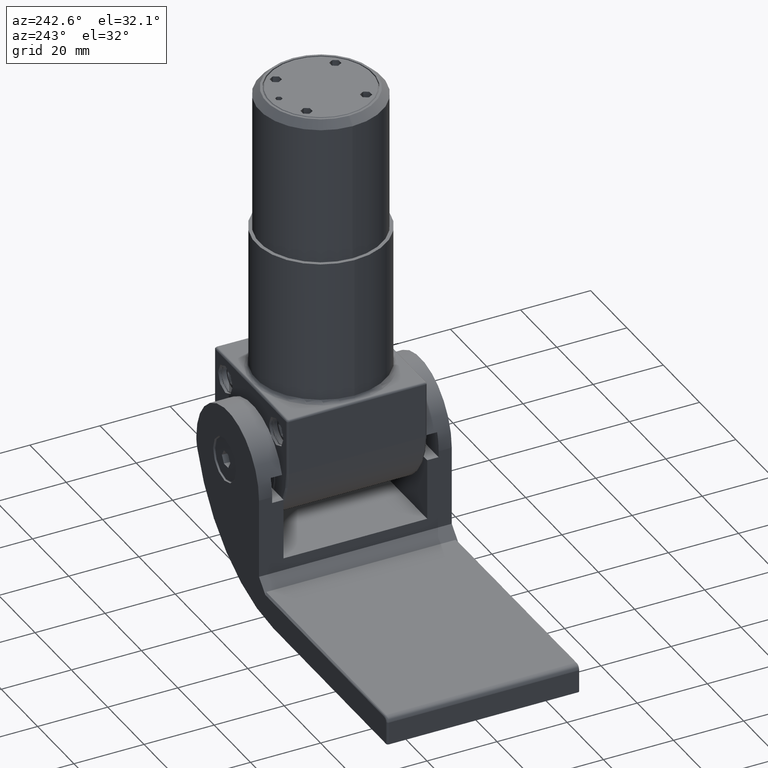
[diagram: clean part render]
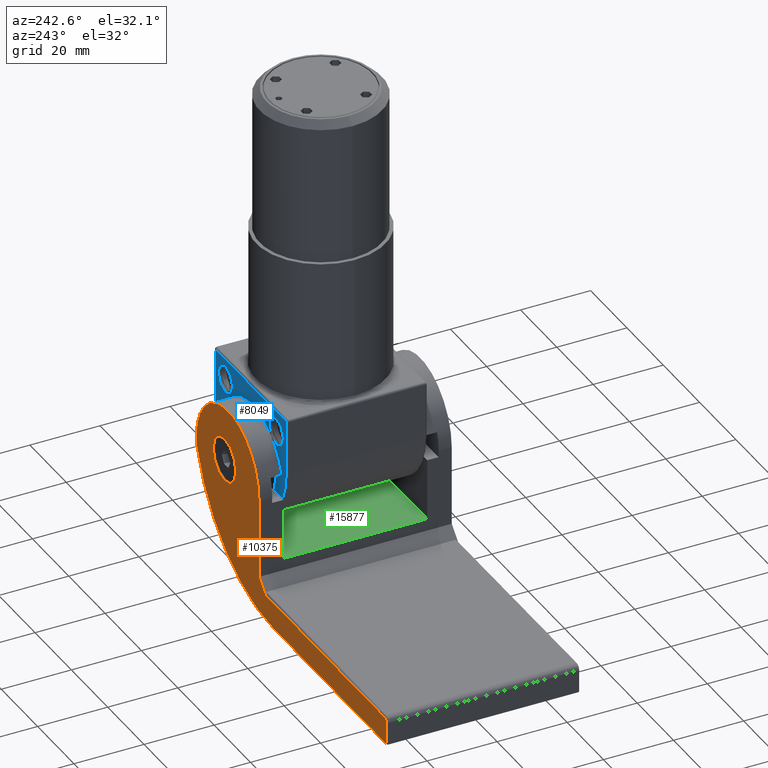
[diagram: same view with three faces highlighted in distinct colors, each labeled with its STEP entity id]
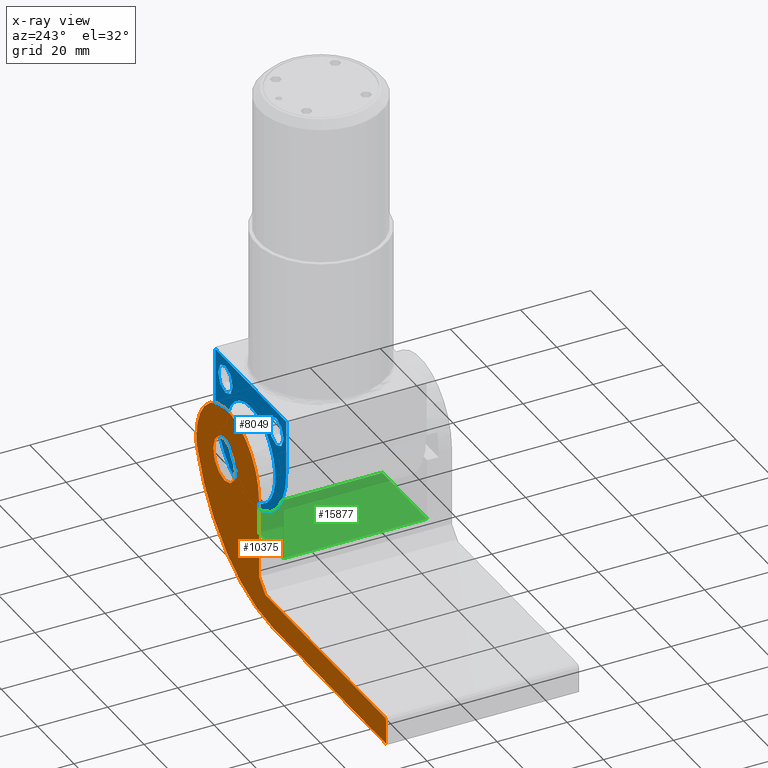
[diagram: x-ray of the same camera — body ghosted, the three highlighted faces saturated]
A machine part, auxiliary view with three faces highlighted in distinct colors.
The next image is the same camera in x-ray (body ghosted, the three faces saturated) — at least one of them is partly hidden behind the body in this view.
Their STEP definitions:

[orange] entity #10375 — the highlighted planar face has unit normal (0, 1, 0).
#612 = FACE_BOUND ( 'NONE', #20874, .T. ) ;
#934 = LINE ( 'NONE', #2543, #20249 ) ;
#945 = CARTESIAN_POINT ( 'NONE',  ( 52.50000000000000711, 27.50000000000000000, 8.249999999999998224 ) ) ;
#2036 = ORIENTED_EDGE ( 'NONE', *, *, #4683, .F. ) ;
#2240 = DIRECTION ( 'NONE',  ( -8.673617379884036458E-16, 0.000000000000000000, 1.000000000000000000 ) ) ;
#2486 = CARTESIAN_POINT ( 'NONE',  ( 42.49999999999999289, 27.50000000000000000, 8.249999999999996447 ) ) ;
#2527 = CIRCLE ( 'NONE', #14515, 6.249999999999998224 ) ;
#2543 = CARTESIAN_POINT ( 'NONE',  ( 14.99999999999999289, 27.50000000000000000, -17.49999999999999645 ) ) ;
#2600 = VERTEX_POINT ( 'NONE', #4343 ) ;
#2976 = CARTESIAN_POINT ( 'NONE',  ( -51.99999999999999289, 27.50000000000000000, -19.00000000000000000 ) ) ;
#3040 = AXIS2_PLACEMENT_3D ( 'NONE', #2486, #6473, #8291 ) ;
#3238 = CIRCLE ( 'NONE', #13347, 44.11184210526318594 ) ;
#3970 = CARTESIAN_POINT ( 'NONE',  ( 17.99999999999998934, 27.50000000000000000, -14.49999999999999822 ) ) ;
#4032 = EDGE_CURVE ( 'NONE', #19943, #6003, #5974, .T. ) ;
#4343 = CARTESIAN_POINT ( 'NONE',  ( 36.99999999999999289, 27.50000000000000355, 3.750000000000000000 ) ) ;
#4446 = CIRCLE ( 'NONE', #23527, 6.249999999999998224 ) ;
#4495 = LINE ( 'NONE', #23807, #25103 ) ;
#4643 = LINE ( 'NONE', #19177, #17831 ) ;
#4644 = CARTESIAN_POINT ( 'NONE',  ( 9.999999999999987566, 27.50000000000000000, -25.50000000000000000 ) ) ;
#4683 = EDGE_CURVE ( 'NONE', #2600, #19700, #4446, .T. ) ;
#4921 = VERTEX_POINT ( 'NONE', #24794 ) ;
#4946 = CIRCLE ( 'NONE', #17083, 1.000000000000000888 ) ;
#5889 = DIRECTION ( 'NONE',  ( 0.000000000000000000, 0.000000000000000000, 1.000000000000000000 ) ) ;
#5915 = VECTOR ( 'NONE', #14492, 1000.000000000000000 ) ;
#5974 = CIRCLE ( 'NONE', #7365, 17.25000000000000711 ) ;
#6003 = VERTEX_POINT ( 'NONE', #945 ) ;
#6008 = DIRECTION ( 'NONE',  ( 0.000000000000000000, 0.000000000000000000, 1.000000000000000000 ) ) ;
#6473 = DIRECTION ( 'NONE',  ( 0.000000000000000000, 1.000000000000000000, -0.000000000000000000 ) ) ;
#6850 = DIRECTION ( 'NONE',  ( 0.000000000000000000, 0.000000000000000000, 1.000000000000000000 ) ) ;
#7365 = AXIS2_PLACEMENT_3D ( 'NONE', #18627, #22773, #6850 ) ;
#8016 = ORIENTED_EDGE ( 'NONE', *, *, #17250, .T. ) ;
#8113 = DIRECTION ( 'NONE',  ( 0.000000000000000000, -0.000000000000000000, 1.000000000000000000 ) ) ;
#8117 = EDGE_CURVE ( 'NONE', #19700, #2600, #2527, .T. ) ;
#8291 = DIRECTION ( 'NONE',  ( 0.000000000000000000, 0.000000000000000000, -1.000000000000000000 ) ) ;
#8762 = AXIS2_PLACEMENT_3D ( 'NONE', #10357, #24123, #8113 ) ;
#8815 = LINE ( 'NONE', #3970, #9404 ) ;
#8841 = DIRECTION ( 'NONE',  ( 0.000000000000000000, 0.000000000000000000, 1.000000000000000000 ) ) ;
#8891 = CARTESIAN_POINT ( 'NONE',  ( -50.99999999999999289, 27.50000000000000000, -18.00000000000000000 ) ) ;
#9067 = CARTESIAN_POINT ( 'NONE',  ( 36.99999999999999289, 27.50000000000000355, 9.999999999999998224 ) ) ;
#9404 = VECTOR ( 'NONE', #6008, 1000.000000000000000 ) ;
#9444 = ORIENTED_EDGE ( 'NONE', *, *, #8117, .F. ) ;
#9593 = ORIENTED_EDGE ( 'NONE', *, *, #12425, .T. ) ;
#9706 = EDGE_LOOP ( 'NONE', ( #8016, #21724, #9593, #23393, #16560, #19663, #11703, #15816, #22757 ) ) ;
#10343 = EDGE_CURVE ( 'NONE', #6003, #14264, #11898, .T. ) ;
#10357 = CARTESIAN_POINT ( 'NONE',  ( 35.25000000000000000, 27.50000000000000000, 8.249999999999996447 ) ) ;
#10375 = ADVANCED_FACE ( 'NONE', ( #612, #13150 ), #12071, .T. ) ;
#10589 = CARTESIAN_POINT ( 'NONE',  ( 14.49999999999999289, 27.50000000000000000, -18.00000000000000000 ) ) ;
#10720 = CARTESIAN_POINT ( 'NONE',  ( 36.99999999999999289, 27.50000000000000355, 16.24999999999999645 ) ) ;
#11358 = CARTESIAN_POINT ( 'NONE',  ( 36.99999999999999289, 27.50000000000000355, 9.999999999999998224 ) ) ;
#11437 = DIRECTION ( 'NONE',  ( -0.000000000000000000, 1.000000000000000000, -0.000000000000000000 ) ) ;
#11703 = ORIENTED_EDGE ( 'NONE', *, *, #15521, .T. ) ;
#11898 = CIRCLE ( 'NONE', #3040, 10.00000000000000533 ) ;
#12071 = PLANE ( 'NONE',  #8762 ) ;
#12425 = EDGE_CURVE ( 'NONE', #20715, #19943, #8815, .T. ) ;
#12489 = CARTESIAN_POINT ( 'NONE',  ( -52.49999999999998579, 27.50000000000000000, -25.50000000000000000 ) ) ;
#12898 = VERTEX_POINT ( 'NONE', #4644 ) ;
#13061 = DIRECTION ( 'NONE',  ( 0.000000000000000000, 0.000000000000000000, -1.000000000000000000 ) ) ;
#13150 = FACE_OUTER_BOUND ( 'NONE', #9706, .T. ) ;
#13347 = AXIS2_PLACEMENT_3D ( 'NONE', #24875, #24780, #13061 ) ;
#13431 = DIRECTION ( 'NONE',  ( 0.000000000000000000, 0.000000000000000000, 1.000000000000000000 ) ) ;
#13447 = CARTESIAN_POINT ( 'NONE',  ( 17.99999999999998934, 27.50000000000000000, 8.249999999999992895 ) ) ;
#14264 = VERTEX_POINT ( 'NONE', #14524 ) ;
#14492 = DIRECTION ( 'NONE',  ( -1.000000000000000000, -0.000000000000000000, -0.000000000000000000 ) ) ;
#14515 = AXIS2_PLACEMENT_3D ( 'NONE', #9067, #20933, #8841 ) ;
#14524 = CARTESIAN_POINT ( 'NONE',  ( 52.02748312439729972, 27.50000000000000000, 5.212391513982630897 ) ) ;
#15398 = CARTESIAN_POINT ( 'NONE',  ( 17.99999999999998934, 27.50000000000000000, -14.49999999999999822 ) ) ;
#15436 = VERTEX_POINT ( 'NONE', #10589 ) ;
#15521 = EDGE_CURVE ( 'NONE', #12898, #4921, #22537, .T. ) ;
#15816 = ORIENTED_EDGE ( 'NONE', *, *, #23193, .T. ) ;
#16560 = ORIENTED_EDGE ( 'NONE', *, *, #10343, .T. ) ;
#17083 = AXIS2_PLACEMENT_3D ( 'NONE', #17754, #21795, #5889 ) ;
#17250 = EDGE_CURVE ( 'NONE', #19122, #15436, #4643, .T. ) ;
#17360 = DIRECTION ( 'NONE',  ( 1.000000000000000000, -0.000000000000000000, 0.000000000000000000 ) ) ;
#17754 = CARTESIAN_POINT ( 'NONE',  ( -50.99999999999999289, 27.50000000000000000, -19.00000000000000000 ) ) ;
#17831 = VECTOR ( 'NONE', #17360, 1000.000000000000000 ) ;
#18153 = EDGE_CURVE ( 'NONE', #22450, #19122, #4946, .T. ) ;
#18627 = CARTESIAN_POINT ( 'NONE',  ( 35.25000000000000000, 27.50000000000000000, 8.249999999999996447 ) ) ;
#18891 = EDGE_CURVE ( 'NONE', #15436, #20715, #934, .T. ) ;
#19122 = VERTEX_POINT ( 'NONE', #8891 ) ;
#19177 = CARTESIAN_POINT ( 'NONE',  ( 14.99999999999999289, 27.50000000000000000, -18.00000000000000000 ) ) ;
#19663 = ORIENTED_EDGE ( 'NONE', *, *, #23813, .T. ) ;
#19700 = VERTEX_POINT ( 'NONE', #10720 ) ;
#19943 = VERTEX_POINT ( 'NONE', #13447 ) ;
#20249 = VECTOR ( 'NONE', #22363, 1000.000000000000000 ) ;
#20715 = VERTEX_POINT ( 'NONE', #15398 ) ;
#20874 = EDGE_LOOP ( 'NONE', ( #9444, #2036 ) ) ;
#20933 = DIRECTION ( 'NONE',  ( -0.000000000000000000, 1.000000000000000000, -0.000000000000000000 ) ) ;
#21724 = ORIENTED_EDGE ( 'NONE', *, *, #18891, .T. ) ;
#21795 = DIRECTION ( 'NONE',  ( 0.000000000000000000, 1.000000000000000000, 0.000000000000000000 ) ) ;
#22363 = DIRECTION ( 'NONE',  ( 0.7071067811865471286, 0.000000000000000000, 0.7071067811865479058 ) ) ;
#22450 = VERTEX_POINT ( 'NONE', #2976 ) ;
#22537 = LINE ( 'NONE', #12489, #5915 ) ;
#22757 = ORIENTED_EDGE ( 'NONE', *, *, #18153, .T. ) ;
#22773 = DIRECTION ( 'NONE',  ( 0.000000000000000000, 1.000000000000000000, 0.000000000000000000 ) ) ;
#23193 = EDGE_CURVE ( 'NONE', #4921, #22450, #4495, .T. ) ;
#23393 = ORIENTED_EDGE ( 'NONE', *, *, #4032, .T. ) ;
#23527 = AXIS2_PLACEMENT_3D ( 'NONE', #11358, #11437, #13431 ) ;
#23807 = CARTESIAN_POINT ( 'NONE',  ( -51.99999999999999289, 27.50000000000000000, -19.00000000000000000 ) ) ;
#23813 = EDGE_CURVE ( 'NONE', #14264, #12898, #3238, .T. ) ;
#24123 = DIRECTION ( 'NONE',  ( 0.000000000000000000, 1.000000000000000000, 0.000000000000000000 ) ) ;
#24780 = DIRECTION ( 'NONE',  ( 0.000000000000000000, 1.000000000000000000, -0.000000000000000000 ) ) ;
#24794 = CARTESIAN_POINT ( 'NONE',  ( -51.99999999999998579, 27.50000000000000000, -25.50000000000000000 ) ) ;
#24875 = CARTESIAN_POINT ( 'NONE',  ( 9.999999999999980460, 27.50000000000000000, 18.61184210526317884 ) ) ;
#25103 = VECTOR ( 'NONE', #2240, 1000.000000000000000 ) ;

[blue] entity #8049 — the highlighted planar face has unit normal (0, 1, 0).
#913 = VERTEX_POINT ( 'NONE', #25354 ) ;
#1112 = EDGE_CURVE ( 'NONE', #14074, #15805, #24974, .T. ) ;
#1127 = DIRECTION ( 'NONE',  ( 0.000000000000000000, 1.000000000000000000, 0.000000000000000000 ) ) ;
#3710 = VECTOR ( 'NONE', #14687, 1000.000000000000000 ) ;
#4294 = AXIS2_PLACEMENT_3D ( 'NONE', #23267, #7186, #9503 ) ;
#4398 = CIRCLE ( 'NONE', #13652, 4.000000000000000888 ) ;
#4671 = CARTESIAN_POINT ( 'NONE',  ( 0.000000000000000000, 20.00000000000000355, -20.50000000000000355 ) ) ;
#4709 = CARTESIAN_POINT ( 'NONE',  ( 19.50000000000000355, 20.00000000000000355, -15.99999999999998934 ) ) ;
#5026 = VERTEX_POINT ( 'NONE', #15487 ) ;
#5299 = AXIS2_PLACEMENT_3D ( 'NONE', #4671, #8267, #24016 ) ;
#5641 = CIRCLE ( 'NONE', #11746, 4.000000000000000888 ) ;
#5713 = AXIS2_PLACEMENT_3D ( 'NONE', #14254, #1127, #14840 ) ;
#5778 = ORIENTED_EDGE ( 'NONE', *, *, #12073, .T. ) ;
#5779 = CARTESIAN_POINT ( 'NONE',  ( 20.00000000000000355, 20.00000000000000355, -0.5000000000000004441 ) ) ;
#5860 = DIRECTION ( 'NONE',  ( 1.000000000000000000, -0.000000000000000000, 0.000000000000000000 ) ) ;
#5969 = CARTESIAN_POINT ( 'NONE',  ( 0.000000000000000000, 20.00000000000000355, -7.000000000000006217 ) ) ;
#6345 = EDGE_CURVE ( 'NONE', #19696, #913, #4398, .T. ) ;
#6443 = VERTEX_POINT ( 'NONE', #12467 ) ;
#6883 = CARTESIAN_POINT ( 'NONE',  ( -13.99999999999999822, 20.00000000000000355, -2.499999999999997780 ) ) ;
#7186 = DIRECTION ( 'NONE',  ( 0.000000000000000000, 1.000000000000000000, 0.000000000000000000 ) ) ;
#7560 = ORIENTED_EDGE ( 'NONE', *, *, #14370, .T. ) ;
#7711 = ORIENTED_EDGE ( 'NONE', *, *, #8216, .T. ) ;
#7854 = DIRECTION ( 'NONE',  ( 2.168404344971010347E-16, -0.000000000000000000, 1.000000000000000000 ) ) ;
#7866 = CARTESIAN_POINT ( 'NONE',  ( 19.50000000000000355, 20.00000000000000355, -15.99999999999998934 ) ) ;
#7895 = EDGE_LOOP ( 'NONE', ( #8559, #17559 ) ) ;
#7928 = ORIENTED_EDGE ( 'NONE', *, *, #1112, .T. ) ;
#8049 = ADVANCED_FACE ( 'NONE', ( #18159, #24361, #24970, #16637 ), #14953, .T. ) ;
#8216 = EDGE_CURVE ( 'NONE', #13400, #6443, #9225, .T. ) ;
#8267 = DIRECTION ( 'NONE',  ( -0.000000000000000000, -1.000000000000000000, -0.000000000000000000 ) ) ;
#8361 = EDGE_CURVE ( 'NONE', #22510, #14074, #15089, .T. ) ;
#8428 = CARTESIAN_POINT ( 'NONE',  ( 13.99999999999999822, 20.00000000000000355, -6.499999999999999112 ) ) ;
#8559 = ORIENTED_EDGE ( 'NONE', *, *, #24958, .T. ) ;
#9078 = VECTOR ( 'NONE', #5860, 1000.000000000000000 ) ;
#9225 = CIRCLE ( 'NONE', #10030, 4.000000000000000888 ) ;
#9503 = DIRECTION ( 'NONE',  ( 0.000000000000000000, -0.000000000000000000, 1.000000000000000000 ) ) ;
#9510 = DIRECTION ( 'NONE',  ( 0.000000000000000000, 1.000000000000000000, 0.000000000000000000 ) ) ;
#9670 = DIRECTION ( 'NONE',  ( -0.000000000000000000, -1.000000000000000000, -0.000000000000000000 ) ) ;
#9928 = CARTESIAN_POINT ( 'NONE',  ( -13.99999999999999822, 20.00000000000000355, -6.499999999999999112 ) ) ;
#10030 = AXIS2_PLACEMENT_3D ( 'NONE', #9928, #9670, #11554 ) ;
#10965 = ORIENTED_EDGE ( 'NONE', *, *, #8361, .T. ) ;
#11286 = CIRCLE ( 'NONE', #14059, 13.49999999999999822 ) ;
#11554 = DIRECTION ( 'NONE',  ( 0.000000000000000000, 0.000000000000000000, 1.000000000000000000 ) ) ;
#11746 = AXIS2_PLACEMENT_3D ( 'NONE', #15496, #13411, #17274 ) ;
#11757 = AXIS2_PLACEMENT_3D ( 'NONE', #15445, #9510, #19466 ) ;
#11996 = CARTESIAN_POINT ( 'NONE',  ( -19.50000000000000000, 20.00000000000000355, 0.000000000000000000 ) ) ;
#12073 = EDGE_CURVE ( 'NONE', #19257, #22510, #20463, .T. ) ;
#12380 = DIRECTION ( 'NONE',  ( 0.000000000000000000, 0.000000000000000000, 1.000000000000000000 ) ) ;
#12467 = CARTESIAN_POINT ( 'NONE',  ( -13.99999999999999822, 20.00000000000000355, -10.49999999999999822 ) ) ;
#13238 = ORIENTED_EDGE ( 'NONE', *, *, #18107, .T. ) ;
#13400 = VERTEX_POINT ( 'NONE', #6883 ) ;
#13411 = DIRECTION ( 'NONE',  ( -0.000000000000000000, -1.000000000000000000, -0.000000000000000000 ) ) ;
#13652 = AXIS2_PLACEMENT_3D ( 'NONE', #8428, #16095, #12380 ) ;
#13932 = EDGE_LOOP ( 'NONE', ( #7928, #13238, #5778, #10965 ) ) ;
#14059 = AXIS2_PLACEMENT_3D ( 'NONE', #14224, #18056, #16282 ) ;
#14074 = VERTEX_POINT ( 'NONE', #7866 ) ;
#14167 = VECTOR ( 'NONE', #7854, 1000.000000000000000 ) ;
#14224 = CARTESIAN_POINT ( 'NONE',  ( 0.000000000000000000, 20.00000000000000355, -20.50000000000000355 ) ) ;
#14254 = CARTESIAN_POINT ( 'NONE',  ( 13.99999999999999822, 20.00000000000000355, -6.499999999999999112 ) ) ;
#14370 = EDGE_CURVE ( 'NONE', #6443, #13400, #5641, .T. ) ;
#14687 = DIRECTION ( 'NONE',  ( 2.168404344971010347E-16, 0.000000000000000000, -1.000000000000000000 ) ) ;
#14786 = LINE ( 'NONE', #11996, #14167 ) ;
#14840 = DIRECTION ( 'NONE',  ( 0.000000000000000000, 0.000000000000000000, 1.000000000000000000 ) ) ;
#14953 = PLANE ( 'NONE',  #4294 ) ;
#15089 = LINE ( 'NONE', #4709, #3710 ) ;
#15306 = ORIENTED_EDGE ( 'NONE', *, *, #6345, .F. ) ;
#15445 = CARTESIAN_POINT ( 'NONE',  ( 0.000000000000000000, 20.00000000000000355, -15.99999999999999289 ) ) ;
#15487 = CARTESIAN_POINT ( 'NONE',  ( 1.653273178848926669E-15, 20.00000000000000355, -34.00000000000000000 ) ) ;
#15496 = CARTESIAN_POINT ( 'NONE',  ( -13.99999999999999822, 20.00000000000000355, -6.499999999999999112 ) ) ;
#15805 = VERTEX_POINT ( 'NONE', #20277 ) ;
#16095 = DIRECTION ( 'NONE',  ( 0.000000000000000000, 1.000000000000000000, 0.000000000000000000 ) ) ;
#16282 = DIRECTION ( 'NONE',  ( 0.000000000000000000, 0.000000000000000000, 1.000000000000000000 ) ) ;
#16637 = FACE_BOUND ( 'NONE', #19888, .T. ) ;
#16869 = CARTESIAN_POINT ( 'NONE',  ( -19.50000000000000000, 20.00000000000000355, -0.5000000000000004441 ) ) ;
#17274 = DIRECTION ( 'NONE',  ( 0.000000000000000000, 0.000000000000000000, 1.000000000000000000 ) ) ;
#17559 = ORIENTED_EDGE ( 'NONE', *, *, #25018, .T. ) ;
#18056 = DIRECTION ( 'NONE',  ( -0.000000000000000000, -1.000000000000000000, -0.000000000000000000 ) ) ;
#18107 = EDGE_CURVE ( 'NONE', #15805, #19257, #14786, .T. ) ;
#18159 = FACE_BOUND ( 'NONE', #25187, .T. ) ;
#18170 = VERTEX_POINT ( 'NONE', #5969 ) ;
#18375 = CIRCLE ( 'NONE', #5299, 13.49999999999999822 ) ;
#18424 = EDGE_CURVE ( 'NONE', #913, #19696, #25229, .T. ) ;
#18467 = ORIENTED_EDGE ( 'NONE', *, *, #18424, .F. ) ;
#19257 = VERTEX_POINT ( 'NONE', #16869 ) ;
#19466 = DIRECTION ( 'NONE',  ( 0.000000000000000000, 0.000000000000000000, 1.000000000000000000 ) ) ;
#19696 = VERTEX_POINT ( 'NONE', #20508 ) ;
#19888 = EDGE_LOOP ( 'NONE', ( #15306, #18467 ) ) ;
#20277 = CARTESIAN_POINT ( 'NONE',  ( -19.50000000000000355, 20.00000000000000355, -15.99999999999999645 ) ) ;
#20463 = LINE ( 'NONE', #5779, #9078 ) ;
#20508 = CARTESIAN_POINT ( 'NONE',  ( 13.99999999999999822, 20.00000000000000355, -2.499999999999997780 ) ) ;
#22510 = VERTEX_POINT ( 'NONE', #25389 ) ;
#23267 = CARTESIAN_POINT ( 'NONE',  ( 0.000000000000000000, 20.00000000000000355, -15.99999999999999289 ) ) ;
#24016 = DIRECTION ( 'NONE',  ( 0.000000000000000000, 0.000000000000000000, 1.000000000000000000 ) ) ;
#24361 = FACE_BOUND ( 'NONE', #7895, .T. ) ;
#24958 = EDGE_CURVE ( 'NONE', #18170, #5026, #11286, .T. ) ;
#24970 = FACE_OUTER_BOUND ( 'NONE', #13932, .T. ) ;
#24974 = CIRCLE ( 'NONE', #11757, 19.50000000000000355 ) ;
#25018 = EDGE_CURVE ( 'NONE', #5026, #18170, #18375, .T. ) ;
#25187 = EDGE_LOOP ( 'NONE', ( #7711, #7560 ) ) ;
#25229 = CIRCLE ( 'NONE', #5713, 4.000000000000000888 ) ;
#25354 = CARTESIAN_POINT ( 'NONE',  ( 13.99999999999999822, 20.00000000000000355, -10.49999999999999822 ) ) ;
#25389 = CARTESIAN_POINT ( 'NONE',  ( 19.50000000000000355, 20.00000000000000355, -0.5000000000000004441 ) ) ;

[green] entity #15877 — the highlighted planar face has unit normal (0, 0, -1).
#585 = DIRECTION ( 'NONE',  ( -1.000000000000000000, 0.000000000000000000, -0.000000000000000000 ) ) ;
#648 = VECTOR ( 'NONE', #24580, 1000.000000000000000 ) ;
#818 = DIRECTION ( 'NONE',  ( -1.000000000000000000, 0.000000000000000000, 0.000000000000000000 ) ) ;
#958 = CARTESIAN_POINT ( 'NONE',  ( 17.99999999999998934, 20.50000000000000000, -10.99999999999999645 ) ) ;
#1449 = ORIENTED_EDGE ( 'NONE', *, *, #17802, .F. ) ;
#4128 = CARTESIAN_POINT ( 'NONE',  ( 17.99999999999998934, 20.50000000000000000, -10.99999999999999645 ) ) ;
#5120 = CARTESIAN_POINT ( 'NONE',  ( 42.69546483921939739, -20.50000000000000000, -10.99999999999999645 ) ) ;
#6364 = PLANE ( 'NONE',  #9453 ) ;
#7457 = ORIENTED_EDGE ( 'NONE', *, *, #15866, .T. ) ;
#8230 = CARTESIAN_POINT ( 'NONE',  ( 42.69546483921939029, 27.50000000000000000, -11.00000000000000000 ) ) ;
#8255 = CARTESIAN_POINT ( 'NONE',  ( -52.49999999999999289, 27.50000000000000000, -11.00000000000000000 ) ) ;
#9453 = AXIS2_PLACEMENT_3D ( 'NONE', #8255, #12288, #585 ) ;
#9819 = LINE ( 'NONE', #8230, #22763 ) ;
#10583 = ORIENTED_EDGE ( 'NONE', *, *, #22788, .T. ) ;
#11426 = FACE_OUTER_BOUND ( 'NONE', #17163, .T. ) ;
#12074 = VERTEX_POINT ( 'NONE', #21762 ) ;
#12288 = DIRECTION ( 'NONE',  ( 0.000000000000000000, 0.000000000000000000, -1.000000000000000000 ) ) ;
#12452 = CARTESIAN_POINT ( 'NONE',  ( 17.99999999999998934, 20.50000000000000000, -10.99999999999999645 ) ) ;
#15461 = LINE ( 'NONE', #20099, #16983 ) ;
#15866 = EDGE_CURVE ( 'NONE', #18947, #18494, #15461, .T. ) ;
#15877 = ADVANCED_FACE ( 'NONE', ( #11426 ), #6364, .F. ) ;
#16149 = DIRECTION ( 'NONE',  ( -0.000000000000000000, -1.000000000000000000, -0.000000000000000000 ) ) ;
#16983 = VECTOR ( 'NONE', #22005, 1000.000000000000000 ) ;
#17163 = EDGE_LOOP ( 'NONE', ( #10583, #22422, #7457, #1449 ) ) ;
#17802 = EDGE_CURVE ( 'NONE', #12074, #18494, #9819, .T. ) ;
#18494 = VERTEX_POINT ( 'NONE', #5120 ) ;
#18533 = EDGE_CURVE ( 'NONE', #19608, #18947, #23340, .T. ) ;
#18947 = VERTEX_POINT ( 'NONE', #20373 ) ;
#19608 = VERTEX_POINT ( 'NONE', #4128 ) ;
#20099 = CARTESIAN_POINT ( 'NONE',  ( 17.99999999999999289, -20.50000000000000000, -10.99999999999999645 ) ) ;
#20373 = CARTESIAN_POINT ( 'NONE',  ( 17.99999999999999289, -20.50000000000000000, -10.99999999999999645 ) ) ;
#21072 = LINE ( 'NONE', #12452, #22639 ) ;
#21762 = CARTESIAN_POINT ( 'NONE',  ( 42.69546483921939739, 20.50000000000000000, -10.99999999999999645 ) ) ;
#22005 = DIRECTION ( 'NONE',  ( 1.000000000000000000, 0.000000000000000000, 0.000000000000000000 ) ) ;
#22422 = ORIENTED_EDGE ( 'NONE', *, *, #18533, .T. ) ;
#22639 = VECTOR ( 'NONE', #818, 1000.000000000000000 ) ;
#22763 = VECTOR ( 'NONE', #16149, 1000.000000000000000 ) ;
#22788 = EDGE_CURVE ( 'NONE', #12074, #19608, #21072, .T. ) ;
#23340 = LINE ( 'NONE', #958, #648 ) ;
#24580 = DIRECTION ( 'NONE',  ( 8.462065736472229849E-17, -1.000000000000000000, 0.000000000000000000 ) ) ;